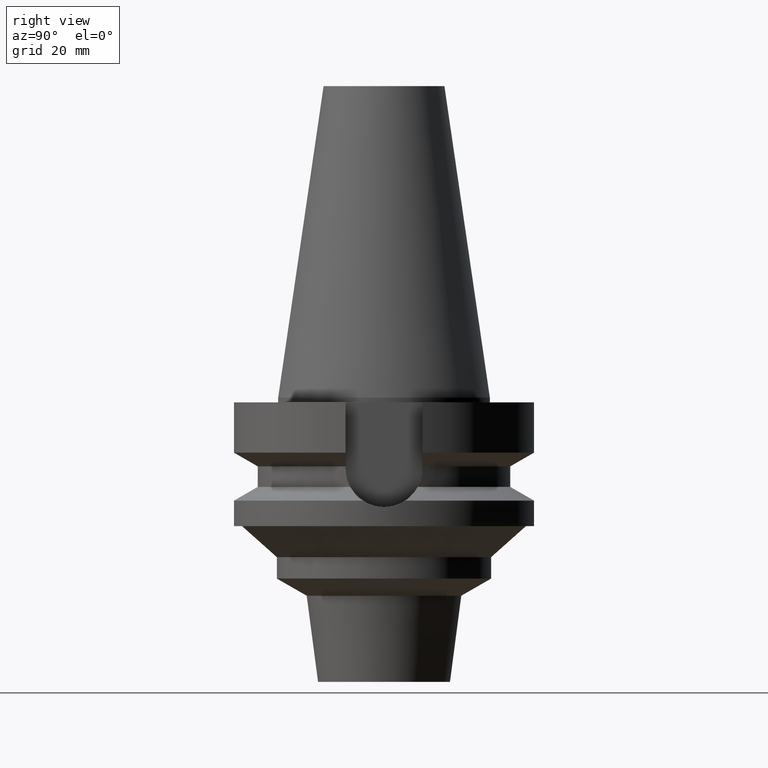
[diagram: clean part render]
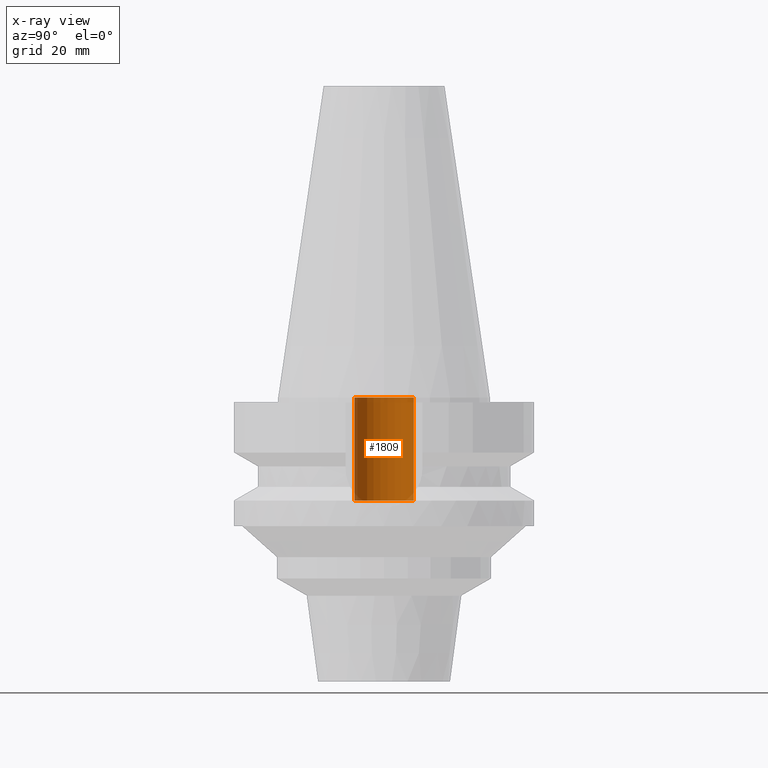
[diagram: x-ray — body ghosted, one internal face saturated and labeled with its STEP entity id]
A machine part, right view, then the same camera in x-ray: the body is ghosted and one INTERNAL B-rep face — a face not visible from any outside direction — is saturated and labeled: STEP entity #1809.
In plain terms, the highlighted cylindrical surface (edge-blend (fillet) strip) has radius 6.25 mm, axis along (0, 0, -1).
Its self-contained STEP definition (entity closure, byte-faithful):
#813=CARTESIAN_POINT('',(0.E0,2.102167463076E-14,-2.17E1));
#814=DIRECTION('',(0.E0,0.E0,-1.E0));
#815=DIRECTION('',(0.E0,-1.E0,0.E0));
#816=AXIS2_PLACEMENT_3D('',#813,#814,#815);
#845=DIRECTION('',(0.E0,0.E0,1.E0));
#846=VECTOR('',#845,2.17E1);
#847=CARTESIAN_POINT('',(0.E0,-6.25E0,-2.17E1));
#848=LINE('',#847,#846);
#852=CARTESIAN_POINT('',(0.E0,2.102167463076E-14,0.E0));
#853=DIRECTION('',(0.E0,0.E0,-1.E0));
#854=DIRECTION('',(0.E0,-1.E0,0.E0));
#855=AXIS2_PLACEMENT_3D('',#852,#853,#854);
#860=DIRECTION('',(0.E0,0.E0,1.E0));
#861=VECTOR('',#860,2.17E1);
#862=CARTESIAN_POINT('',(0.E0,6.25E0,-2.17E1));
#863=LINE('',#862,#861);
#1059=CARTESIAN_POINT('',(0.E0,6.25E0,-2.842170943040E-14));
#1060=VERTEX_POINT('',#1059);
#1061=CARTESIAN_POINT('',(0.E0,-6.25E0,-2.842170943040E-14));
#1062=VERTEX_POINT('',#1061);
#1063=CARTESIAN_POINT('',(0.E0,6.25E0,-2.17E1));
#1064=VERTEX_POINT('',#1063);
#1065=CARTESIAN_POINT('',(0.E0,-6.25E0,-2.17E1));
#1066=VERTEX_POINT('',#1065);
#1795=CARTESIAN_POINT('',(0.E0,2.102167463076E-14,7.1655E1));
#1796=DIRECTION('',(0.E0,0.E0,-1.E0));
#1797=DIRECTION('',(0.E0,-1.E0,0.E0));
#1798=AXIS2_PLACEMENT_3D('',#1795,#1796,#1797);
#1799=CYLINDRICAL_SURFACE('',#1798,6.25E0);
#1801=ORIENTED_EDGE('',*,*,#1800,.F.);
#1802=ORIENTED_EDGE('',*,*,#1784,.F.);
#1804=ORIENTED_EDGE('',*,*,#1803,.T.);
#1806=ORIENTED_EDGE('',*,*,#1805,.T.);
#1807=EDGE_LOOP('',(#1801,#1802,#1804,#1806));
#1808=FACE_OUTER_BOUND('',#1807,.F.);
#817=CIRCLE('',#816,6.25E0);
#856=CIRCLE('',#855,6.25E0);
#1784=EDGE_CURVE('',#1066,#1064,#817,.T.);
#1800=EDGE_CURVE('',#1064,#1060,#863,.T.);
#1803=EDGE_CURVE('',#1066,#1062,#848,.T.);
#1805=EDGE_CURVE('',#1062,#1060,#856,.T.);
#1809=ADVANCED_FACE('',(#1808),#1799,.F.);